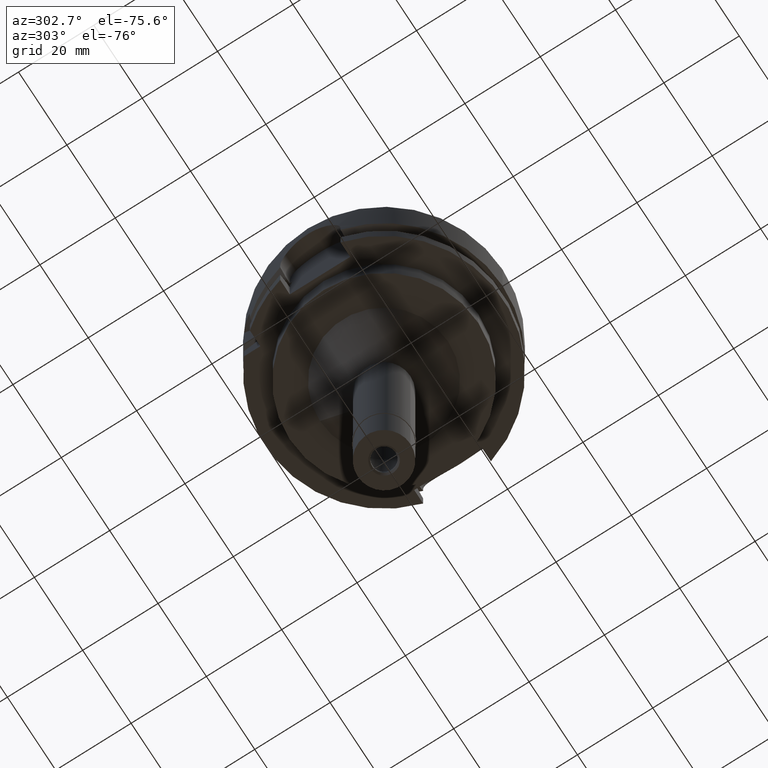
[diagram: clean part render]
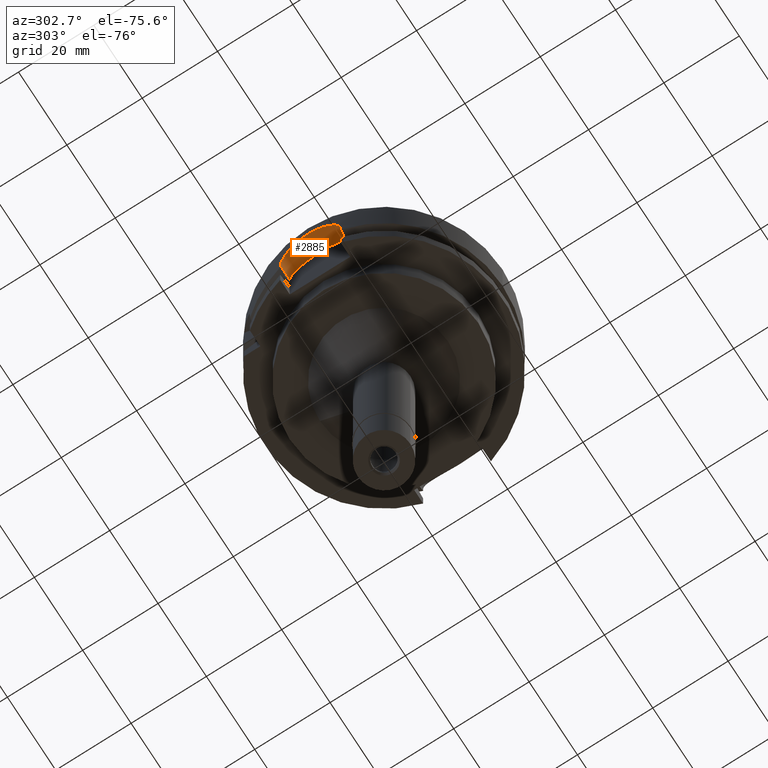
[diagram: same view with one face highlighted and labeled with its STEP entity id]
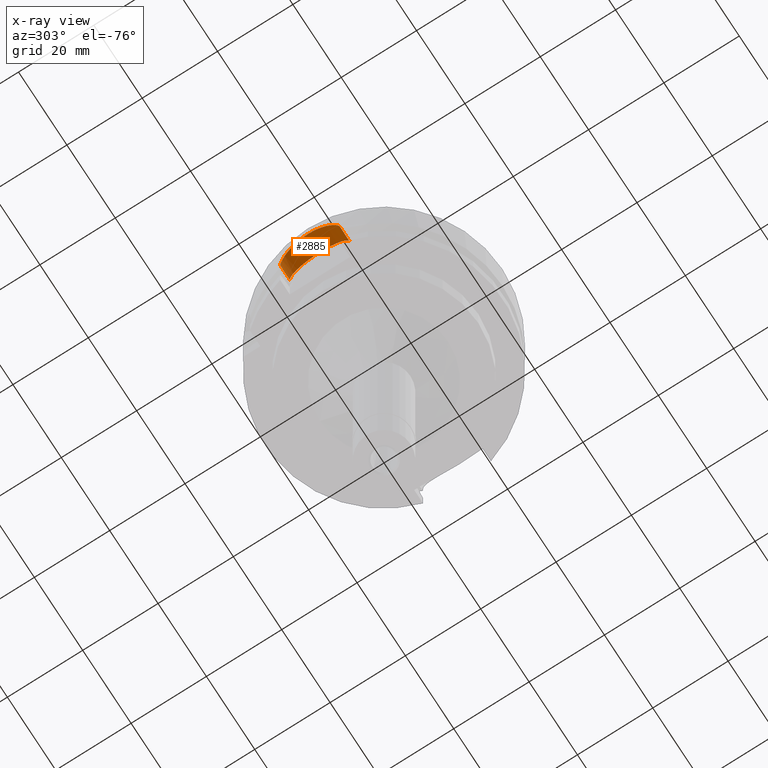
[diagram: x-ray of the same camera — body ghosted, the highlighted face saturated]
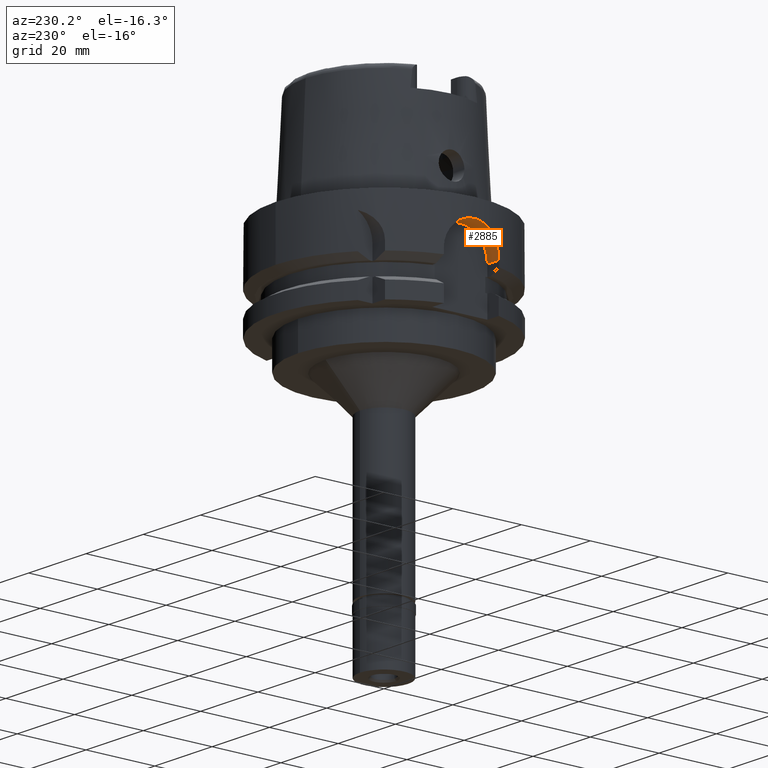
[diagram: same view with one face highlighted and labeled with its STEP entity id]
A machine part, auxiliary view. The second image highlights one B-rep face of the part: STEP entity #2885.
The next image is the same camera in x-ray: the body ghosted, the highlighted face saturated — about 0% of this face is hidden behind the body in this view.
A second angle (auxiliary view) of the same face is appended — the face is thin or edge-on in the first view.
In plain terms, the highlighted cylindrical surface (edge-blend (fillet) strip) has radius 8 mm, axis along (1, 0, 0).
Its self-contained STEP definition (entity closure, byte-faithful):
#36 = CARTESIAN_POINT ( 'NONE',  ( -31.39751750562000510, 2.551146883070249505, -5.413142201654498997 ) ) ;
#59 = CARTESIAN_POINT ( 'NONE',  ( -31.10597419837743871, 4.967807807755301397, -6.727903275399626182 ) ) ;
#94 = FACE_OUTER_BOUND ( 'NONE', #3232, .T. ) ;
#109 = DIRECTION ( 'NONE',  ( -1.000000000000000000, 8.776122650820999714E-14, 0.0000000000000000000 ) ) ;
#144 = CARTESIAN_POINT ( 'NONE',  ( -31.37653858703504639, 2.796769158586169812, -5.500265141511063050 ) ) ;
#223 = ORIENTED_EDGE ( 'NONE', *, *, #956, .T. ) ;
#254 = CARTESIAN_POINT ( 'NONE',  ( -31.05571320555393910, -5.275949611157587427, -6.980403696164010796 ) ) ;
#490 = CARTESIAN_POINT ( 'NONE',  ( -30.49311663445022802, 7.900792394654918560, -11.71739009623616568 ) ) ;
#546 = CARTESIAN_POINT ( 'NONE',  ( -31.17125852457144930, 4.540368874157871382, -6.412031945379322195 ) ) ;
#601 = CARTESIAN_POINT ( 'NONE',  ( -30.72496487599373793, -6.945680446873176983, -9.021595561568673816 ) ) ;
#656 = CARTESIAN_POINT ( 'NONE',  ( -30.66829496328809057, -7.191774992717989257, -9.485896381922987786 ) ) ;
#687 = B_SPLINE_CURVE_WITH_KNOTS ( 'NONE', 3,
 ( #2634, #4308, #1345, #1779, #490, #3388, #3848, #2116, #3876, #2973, #1292, #4358, #1725, #2165, #3467, #927, #2139, #59, #3050, #4336, #546, #4670, #5094, #2560, #2220, #3801, #3909, #144, #36, #1701, #1809, #3494, #4251, #5180, #1403, #2998, #4693, #900, #3085, #4025, #4797, #1869, #4853, #5235, #1896, #1074, #2776, #1456, #3582, #1514, #254, #3104, #4383, #5293, #3636, #601, #656, #3195, #1538, #2281, #4879, #4063, #1924, #5316, #2739 ),
 .UNSPECIFIED., .F., .F.,
 ( 4, 2, 2, 2, 2, 2, 2, 2, 2, 2, 2, 2, 2, 2, 2, 2, 2, 2, 2, 1, 2, 2, 2, 2, 2, 2, 2, 2, 2, 2, 2, 2, 4 ),
 ( 0.0000000000000000000, 0.03125000000000015959, 0.06250000000000031919, 0.09375000000000044409, 0.1250000000000005829, 0.1875000000000009159, 0.2187500000000010825, 0.2500000000000011657, 0.2812500000000012212, 0.2968750000000012212, 0.3125000000000012768, 0.3437500000000012768, 0.3593750000000012212, 0.3750000000000011657, 0.4062500000000010547, 0.4375000000000009437, 0.5000000000000006661, 0.5312500000000005551, 0.5625000000000004441, 0.5937500000000002220, 0.6093750000000002220, 0.6250000000000002220, 0.6562500000000000000, 0.6718750000000000000, 0.6875000000000000000, 0.7187499999999998890, 0.7499999999999997780, 0.8124999999999998890, 0.8437500000000000000, 0.8750000000000000000, 0.9062500000000001110, 0.9375000000000001110, 1.000000000000000000 ),
 .UNSPECIFIED. ) ;
#795 = CARTESIAN_POINT ( 'NONE',  ( -26.50000000000000000, 0.0000000000000000000, -13.00000000000000000 ) ) ;
#900 = CARTESIAN_POINT ( 'NONE',  ( -31.44949749569152075, -1.801386730555839977, -5.201079033675000574 ) ) ;
#927 = CARTESIAN_POINT ( 'NONE',  ( -31.02187808113967193, 5.470778612128253116, -7.156988511166864519 ) ) ;
#953 = AXIS2_PLACEMENT_3D ( 'NONE', #3447, #4801, #1349 ) ;
#956 = EDGE_CURVE ( 'NONE', #4666, #2692, #3334, .T. ) ;
#1074 = CARTESIAN_POINT ( 'NONE',  ( -31.24713681680911392, -3.984897501367804296, -6.061802170389492872 ) ) ;
#1292 = CARTESIAN_POINT ( 'NONE',  ( -30.72362680543766089, 6.956926099314023837, -9.014865801352577535 ) ) ;
#1345 = CARTESIAN_POINT ( 'NONE',  ( -30.47046936434525222, 7.987562727870274770, -12.48389887870205506 ) ) ;
#1348 = CARTESIAN_POINT ( 'NONE',  ( -30.46719547316000032, -8.000000000000000000, -13.00000000000000000 ) ) ;
#1349 = DIRECTION ( 'NONE',  ( 0.0000000000000000000, 0.0000000000000000000, 1.000000000000000000 ) ) ;
#1403 = CARTESIAN_POINT ( 'NONE',  ( -31.49677512529969192, -0.5190792994891397782, -5.012591775797659466 ) ) ;
#1456 = CARTESIAN_POINT ( 'NONE',  ( -31.20242024746101350, -4.321054262804882917, -6.266095709790433510 ) ) ;
#1514 = CARTESIAN_POINT ( 'NONE',  ( -31.12245719725673254, -4.866787956138470150, -6.645079909472078938 ) ) ;
#1538 = CARTESIAN_POINT ( 'NONE',  ( -30.59373723260949873, -7.502244466341777773, -10.20989398922033153 ) ) ;
#1677 = VERTEX_POINT ( 'NONE', #3093 ) ;
#1701 = CARTESIAN_POINT ( 'NONE',  ( -31.43404276895090632, 2.052659527169419018, -5.263366927137312246 ) ) ;
#1725 = CARTESIAN_POINT ( 'NONE',  ( -30.85175633427170183, 6.359899679441658904, -8.139651760015441440 ) ) ;
#1758 = CYLINDRICAL_SURFACE ( 'NONE', #953, 8.000000000000000000 ) ;
#1779 = CARTESIAN_POINT ( 'NONE',  ( -30.48347349200445677, 7.937789709826465590, -11.97102420239969511 ) ) ;
#1809 = CARTESIAN_POINT ( 'NONE',  ( -31.44966182428476387, 1.798311609665681043, -5.200423058040655633 ) ) ;
#1849 = DIRECTION ( 'NONE',  ( 1.000000000000000000, 8.686570378873998593E-14, 0.0000000000000000000 ) ) ;
#1866 = ORIENTED_EDGE ( 'NONE', *, *, #2519, .F. ) ;
#1869 = CARTESIAN_POINT ( 'NONE',  ( -31.36478212464258775, -2.918131538570138073, -5.550075916262472653 ) ) ;
#1896 = CARTESIAN_POINT ( 'NONE',  ( -31.26152930266547258, -3.870456020538382891, -5.997298722323066933 ) ) ;
#1924 = CARTESIAN_POINT ( 'NONE',  ( -30.48036059509010798, -7.950356523976277678, -11.97071246687085910 ) ) ;
#2004 = VECTOR ( 'NONE', #109, 1000.000000000000000 ) ;
#2041 = CARTESIAN_POINT ( 'NONE',  ( -26.50000000000000000, 8.000000000000000000, -13.00000000000000000 ) ) ;
#2112 = DIRECTION ( 'NONE',  ( 1.000000000000000000, 0.0000000000000000000, 0.0000000000000000000 ) ) ;
#2116 = CARTESIAN_POINT ( 'NONE',  ( -30.57233659845719842, 7.588686656463762503, -10.45426432972289987 ) ) ;
#2139 = CARTESIAN_POINT ( 'NONE',  ( -31.05592043737540209, 5.274730966322193737, -6.979333167963077678 ) ) ;
#2165 = CARTESIAN_POINT ( 'NONE',  ( -30.91893244296264243, 6.024849328352414268, -7.730129282029038151 ) ) ;
#2220 = CARTESIAN_POINT ( 'NONE',  ( -31.30298826464823136, 3.519555021447489995, -5.814551383447096988 ) ) ;
#2281 = CARTESIAN_POINT ( 'NONE',  ( -30.57222014968461821, -7.589155089370874130, -10.45566941645846804 ) ) ;
#2456 = AXIS2_PLACEMENT_3D ( 'NONE', #795, #2112, #4555 ) ;
#2519 = EDGE_CURVE ( 'NONE', #1677, #2692, #2610, .T. ) ;
#2560 = CARTESIAN_POINT ( 'NONE',  ( -31.28953998203720488, 3.637077696342677857, -5.873297521315537395 ) ) ;
#2610 = LINE ( 'NONE', #1348, #4131 ) ;
#2634 = CARTESIAN_POINT ( 'NONE',  ( -30.46719547316000032, 8.000000000000000000, -13.00000000000000000 ) ) ;
#2692 = VERTEX_POINT ( 'NONE', #2928 ) ;
#2739 = CARTESIAN_POINT ( 'NONE',  ( -30.46719547316000032, -8.000000000000000000, -13.00000000000000000 ) ) ;
#2776 = CARTESIAN_POINT ( 'NONE',  ( -31.21750923798949628, -4.210710666958171089, -6.196542798061607904 ) ) ;
#2885 = ADVANCED_FACE ( 'NONE', ( #94 ), #1758, .F. ) ;
#2928 = CARTESIAN_POINT ( 'NONE',  ( -26.50000000000000000, -8.000000000000000000, -13.00000000000000000 ) ) ;
#2973 = CARTESIAN_POINT ( 'NONE',  ( -30.66617587511604626, 7.202629446212127640, -9.478638014086230967 ) ) ;
#2998 = CARTESIAN_POINT ( 'NONE',  ( -31.48408245245742876, -1.033846574554408315, -5.062798261256718391 ) ) ;
#3030 = ORIENTED_EDGE ( 'NONE', *, *, #5072, .F. ) ;
#3041 = LINE ( 'NONE', #3486, #2004 ) ;
#3050 = CARTESIAN_POINT ( 'NONE',  ( -31.12248983947323211, 4.863358306349528704, -6.646602164918840039 ) ) ;
#3085 = CARTESIAN_POINT ( 'NONE',  ( -31.42616278189508350, -2.180628401152636897, -5.295126509257970682 ) ) ;
#3093 = CARTESIAN_POINT ( 'NONE',  ( -30.46719547316000032, -8.000000000000000000, -13.00000000000000000 ) ) ;
#3104 = CARTESIAN_POINT ( 'NONE',  ( -31.02184472235902390, -5.471001753614685548, -7.157136256387466311 ) ) ;
#3195 = CARTESIAN_POINT ( 'NONE',  ( -30.64173994537294021, -7.303711591434137951, -9.725159153923476296 ) ) ;
#3232 = EDGE_LOOP ( 'NONE', ( #5351, #223, #1866, #3030 ) ) ;
#3307 = CARTESIAN_POINT ( 'NONE',  ( -30.46719547316000032, 8.000000000000000000, -13.00000000000000000 ) ) ;
#3334 = CIRCLE ( 'NONE', #2456, 8.000000000000000000 ) ;
#3388 = CARTESIAN_POINT ( 'NONE',  ( -30.51893315439456700, 7.800474451161170109, -11.20536184594962670 ) ) ;
#3447 = CARTESIAN_POINT ( 'NONE',  ( -31.50000000000000000, 0.0000000000000000000, -13.00000000000000000 ) ) ;
#3467 = CARTESIAN_POINT ( 'NONE',  ( -30.95339424955067997, 5.845829516492624833, -7.532370027230728127 ) ) ;
#3486 = CARTESIAN_POINT ( 'NONE',  ( -26.50000000000000000, 8.000000000000000000, -13.00000000000000000 ) ) ;
#3494 = CARTESIAN_POINT ( 'NONE',  ( -31.48718059662408564, 1.033475739875399313, -5.050046565160661416 ) ) ;
#3582 = CARTESIAN_POINT ( 'NONE',  ( -31.15515541102491781, -4.653648921004197803, -6.487460649546930469 ) ) ;
#3636 = CARTESIAN_POINT ( 'NONE',  ( -30.75521212176483488, -6.810975039654483254, -8.795221607823062726 ) ) ;
#3643 = VERTEX_POINT ( 'NONE', #3307 ) ;
#3801 = CARTESIAN_POINT ( 'NONE',  ( -31.32884444781481292, 3.281439837986350305, -5.702789551136580037 ) ) ;
#3848 = CARTESIAN_POINT ( 'NONE',  ( -30.53486720066913307, 7.738075684358252104, -10.95273669264696892 ) ) ;
#3876 = CARTESIAN_POINT ( 'NONE',  ( -30.59375289133390297, 7.502188844580420124, -10.20961931643793719 ) ) ;
#3909 = CARTESIAN_POINT ( 'NONE',  ( -31.34136359326012666, 3.159699506693418591, -5.649302505192861368 ) ) ;
#4025 = CARTESIAN_POINT ( 'NONE',  ( -31.39671527136878026, -2.551756247754214169, -5.416712190153907258 ) ) ;
#4063 = CARTESIAN_POINT ( 'NONE',  ( -30.51876164595471153, -7.801142564629038212, -11.20858455537305076 ) ) ;
#4131 = VECTOR ( 'NONE', #1849, 1000.000000000000000 ) ;
#4251 = CARTESIAN_POINT ( 'NONE',  ( -31.50001416988312997, 0.5184579006109558685, -4.999947540164991544 ) ) ;
#4308 = CARTESIAN_POINT ( 'NONE',  ( -30.46719547316397936, 8.000000000001037392, -12.74141169851843713 ) ) ;
#4336 = CARTESIAN_POINT ( 'NONE',  ( -31.15505701797695792, 4.650166666976343066, -6.489017651371349338 ) ) ;
#4358 = CARTESIAN_POINT ( 'NONE',  ( -30.81885551308397098, 6.516951823623871043, -8.352437154060684321 ) ) ;
#4383 = CARTESIAN_POINT ( 'NONE',  ( -30.91857318719786463, -6.036445372297027490, -7.723293636580259580 ) ) ;
#4555 = DIRECTION ( 'NONE',  ( 0.0000000000000000000, 0.0000000000000000000, 1.000000000000000000 ) ) ;
#4666 = VERTEX_POINT ( 'NONE', #2041 ) ;
#4670 = CARTESIAN_POINT ( 'NONE',  ( -31.21806995170932808, 4.210859599481176829, -6.192815206076327073 ) ) ;
#4693 = CARTESIAN_POINT ( 'NONE',  ( -31.47467719722402180, -1.288635796133495770, -5.100160804286995919 ) ) ;
#4797 = CARTESIAN_POINT ( 'NONE',  ( -31.37578633307593634, -2.797359783889123985, -5.503888911931850814 ) ) ;
#4801 = DIRECTION ( 'NONE',  ( 1.000000000000000000, 0.0000000000000000000, 0.0000000000000000000 ) ) ;
#4853 = CARTESIAN_POINT ( 'NONE',  ( -31.32926175611573072, -3.284441417892989712, -5.700583273917462890 ) ) ;
#4879 = CARTESIAN_POINT ( 'NONE',  ( -30.53478168033985085, -7.738412471902081258, -10.95403629011416768 ) ) ;
#5072 = EDGE_CURVE ( 'NONE', #3643, #1677, #687, .T. ) ;
#5094 = CARTESIAN_POINT ( 'NONE',  ( -31.24778516541723050, 3.985035518396498944, -6.058131600060375099 ) ) ;
#5180 = CARTESIAN_POINT ( 'NONE',  ( -31.49999289744041775, -0.2605192614560947750, -5.000026923823193137 ) ) ;
#5235 = CARTESIAN_POINT ( 'NONE',  ( -31.30329634980877529, -3.522529521435414424, -5.812388975432615013 ) ) ;
#5274 = EDGE_CURVE ( 'NONE', #4666, #3643, #3041, .T. ) ;
#5293 = CARTESIAN_POINT ( 'NONE',  ( -30.85032145204871412, -6.371615249483635779, -8.133429115880861815 ) ) ;
#5316 = CARTESIAN_POINT ( 'NONE',  ( -30.46719547316397225, -8.000000000001024958, -12.48317006935786289 ) ) ;
#5351 = ORIENTED_EDGE ( 'NONE', *, *, #5274, .F. ) ;